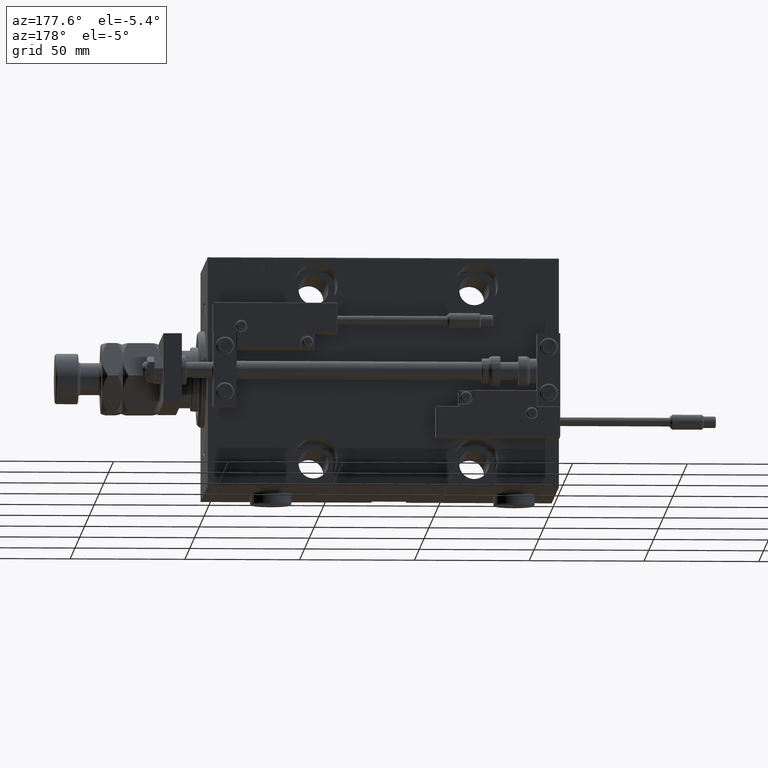
[diagram: clean part render]
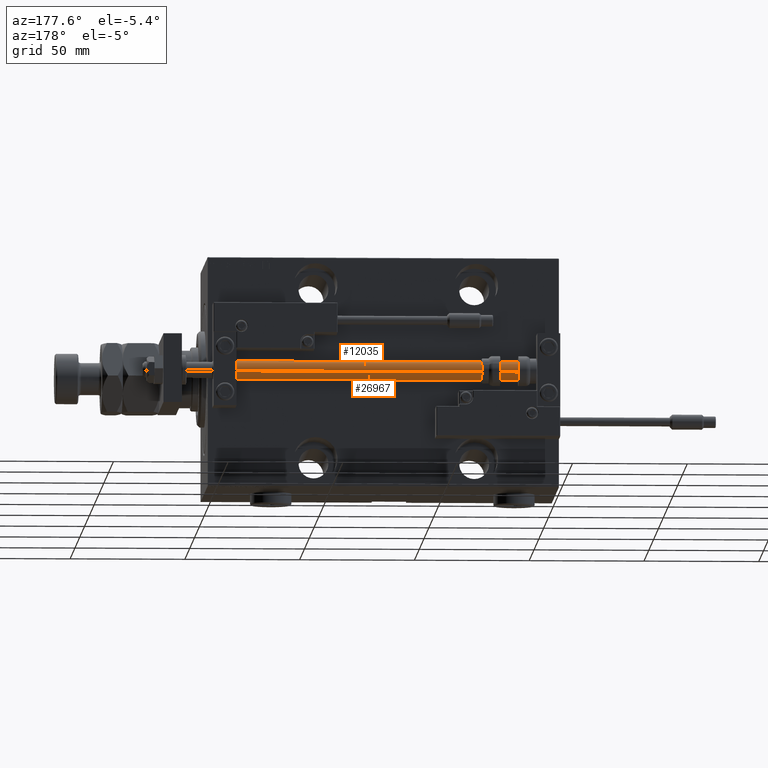
[diagram: same view with one multi-face feature highlighted, each face labeled with its STEP entity id]
A machine part, auxiliary view. The highlighted faces form ONE feature: a constant-radius fillet chain: 2 tangent blend faces with common blend radius 4 mm. The faces share edges in the B-rep.
Their STEP definitions:
[1] entity #26967 (Cylinder):
#1223 = DIRECTION ( 'NONE',  ( 0.000000000000000000, 0.000000000000000000, 1.000000000000000000 ) ) ;
#5324 = CARTESIAN_POINT ( 'NONE',  ( 0.000000000000000000, 0.000000000000000000, 2.000000000000029310 ) ) ;
#9657 = EDGE_CURVE ( 'NONE', #51172, #24324, #53136, .T. ) ;
#9696 = ORIENTED_EDGE ( 'NONE', *, *, #19949, .F. ) ;
#10041 = CARTESIAN_POINT ( 'NONE',  ( -4.000000000000000000, 0.000000000000000000, 2.000000000000029310 ) ) ;
#10278 = CIRCLE ( 'NONE', #36130, 4.000000000000000000 ) ;
#10960 = VECTOR ( 'NONE', #28622, 1000.000000000000000 ) ;
#11566 = CARTESIAN_POINT ( 'NONE',  ( 4.000000000000000000, 4.898587196589412829E-16, 153.0000000000000000 ) ) ;
#14407 = CARTESIAN_POINT ( 'NONE',  ( 4.000000000000000000, 4.898587196589412829E-16, 2.000000000000029310 ) ) ;
#14555 = DIRECTION ( 'NONE',  ( -0.000000000000000000, -0.000000000000000000, -1.000000000000000000 ) ) ;
#15415 = VECTOR ( 'NONE', #21318, 1000.000000000000000 ) ;
#17385 = CARTESIAN_POINT ( 'NONE',  ( 0.000000000000000000, 0.000000000000000000, 153.0000000000000000 ) ) ;
#18068 = LINE ( 'NONE', #38285, #15415 ) ;
#18557 = AXIS2_PLACEMENT_3D ( 'NONE', #17385, #1223, #43530 ) ;
#19187 = CARTESIAN_POINT ( 'NONE',  ( -4.000000000000000000, 0.000000000000000000, 153.0000000000000000 ) ) ;
#19949 = EDGE_CURVE ( 'NONE', #51172, #49911, #21190, .T. ) ;
#20446 = AXIS2_PLACEMENT_3D ( 'NONE', #51780, #14555, #38834 ) ;
#20568 = ORIENTED_EDGE ( 'NONE', *, *, #30485, .F. ) ;
#21190 = CIRCLE ( 'NONE', #18557, 4.000000000000000000 ) ;
#21318 = DIRECTION ( 'NONE',  ( -0.000000000000000000, -0.000000000000000000, -1.000000000000000000 ) ) ;
#21490 = DIRECTION ( 'NONE',  ( 1.000000000000000000, 0.000000000000000000, 0.000000000000000000 ) ) ;
#22936 = FACE_OUTER_BOUND ( 'NONE', #46530, .T. ) ;
#24121 = ORIENTED_EDGE ( 'NONE', *, *, #31474, .T. ) ;
#24324 = VERTEX_POINT ( 'NONE', #14407 ) ;
#25288 = DIRECTION ( 'NONE',  ( -0.000000000000000000, -0.000000000000000000, 1.000000000000000000 ) ) ;
#26967 = ADVANCED_FACE ( 'NONE', ( #22936 ), #30221, .T. ) ;
#28622 = DIRECTION ( 'NONE',  ( -0.000000000000000000, -0.000000000000000000, -1.000000000000000000 ) ) ;
#29403 = CARTESIAN_POINT ( 'NONE',  ( 4.000000000000000000, 4.898587196589412829E-16, 153.0000000000000000 ) ) ;
#30221 = CYLINDRICAL_SURFACE ( 'NONE', #20446, 4.000000000000000000 ) ;
#30485 = EDGE_CURVE ( 'NONE', #49911, #45751, #18068, .T. ) ;
#31474 = EDGE_CURVE ( 'NONE', #24324, #45751, #10278, .T. ) ;
#36130 = AXIS2_PLACEMENT_3D ( 'NONE', #5324, #25288, #21490 ) ;
#38285 = CARTESIAN_POINT ( 'NONE',  ( -4.000000000000000000, 0.000000000000000000, 153.0000000000000000 ) ) ;
#38834 = DIRECTION ( 'NONE',  ( -1.000000000000000000, 0.000000000000000000, 0.000000000000000000 ) ) ;
#43530 = DIRECTION ( 'NONE',  ( 1.000000000000000000, 0.000000000000000000, 0.000000000000000000 ) ) ;
#45751 = VERTEX_POINT ( 'NONE', #10041 ) ;
#46530 = EDGE_LOOP ( 'NONE', ( #9696, #47999, #24121, #20568 ) ) ;
#47999 = ORIENTED_EDGE ( 'NONE', *, *, #9657, .T. ) ;
#49911 = VERTEX_POINT ( 'NONE', #19187 ) ;
#51172 = VERTEX_POINT ( 'NONE', #11566 ) ;
#51780 = CARTESIAN_POINT ( 'NONE',  ( 0.000000000000000000, 0.000000000000000000, 153.0000000000000000 ) ) ;
#53136 = LINE ( 'NONE', #29403, #10960 ) ;
[2] entity #12035 (Cylinder):
#15 = DIRECTION ( 'NONE',  ( -1.000000000000000000, 0.000000000000000000, 0.000000000000000000 ) ) ;
#3275 = ORIENTED_EDGE ( 'NONE', *, *, #47465, .T. ) ;
#4058 = CYLINDRICAL_SURFACE ( 'NONE', #16687, 4.000000000000000000 ) ;
#6266 = ORIENTED_EDGE ( 'NONE', *, *, #32816, .F. ) ;
#7047 = ORIENTED_EDGE ( 'NONE', *, *, #30485, .T. ) ;
#9657 = EDGE_CURVE ( 'NONE', #51172, #24324, #53136, .T. ) ;
#10041 = CARTESIAN_POINT ( 'NONE',  ( -4.000000000000000000, 0.000000000000000000, 2.000000000000029310 ) ) ;
#10960 = VECTOR ( 'NONE', #28622, 1000.000000000000000 ) ;
#11377 = DIRECTION ( 'NONE',  ( 0.000000000000000000, 0.000000000000000000, 1.000000000000000000 ) ) ;
#11566 = CARTESIAN_POINT ( 'NONE',  ( 4.000000000000000000, 4.898587196589412829E-16, 153.0000000000000000 ) ) ;
#12027 = CIRCLE ( 'NONE', #22375, 4.000000000000000000 ) ;
#12035 = ADVANCED_FACE ( 'NONE', ( #20489 ), #4058, .T. ) ;
#14407 = CARTESIAN_POINT ( 'NONE',  ( 4.000000000000000000, 4.898587196589412829E-16, 2.000000000000029310 ) ) ;
#15114 = EDGE_LOOP ( 'NONE', ( #20771, #6266, #7047, #3275 ) ) ;
#15415 = VECTOR ( 'NONE', #21318, 1000.000000000000000 ) ;
#16163 = AXIS2_PLACEMENT_3D ( 'NONE', #51163, #23135, #19090 ) ;
#16687 = AXIS2_PLACEMENT_3D ( 'NONE', #36937, #32635, #15 ) ;
#18068 = LINE ( 'NONE', #38285, #15415 ) ;
#19090 = DIRECTION ( 'NONE',  ( 1.000000000000000000, 0.000000000000000000, 0.000000000000000000 ) ) ;
#19187 = CARTESIAN_POINT ( 'NONE',  ( -4.000000000000000000, 0.000000000000000000, 153.0000000000000000 ) ) ;
#20489 = FACE_OUTER_BOUND ( 'NONE', #15114, .T. ) ;
#20771 = ORIENTED_EDGE ( 'NONE', *, *, #9657, .F. ) ;
#21318 = DIRECTION ( 'NONE',  ( -0.000000000000000000, -0.000000000000000000, -1.000000000000000000 ) ) ;
#22375 = AXIS2_PLACEMENT_3D ( 'NONE', #32393, #11377, #23784 ) ;
#23135 = DIRECTION ( 'NONE',  ( -0.000000000000000000, -0.000000000000000000, 1.000000000000000000 ) ) ;
#23784 = DIRECTION ( 'NONE',  ( 1.000000000000000000, 0.000000000000000000, 0.000000000000000000 ) ) ;
#24324 = VERTEX_POINT ( 'NONE', #14407 ) ;
#28622 = DIRECTION ( 'NONE',  ( -0.000000000000000000, -0.000000000000000000, -1.000000000000000000 ) ) ;
#29403 = CARTESIAN_POINT ( 'NONE',  ( 4.000000000000000000, 4.898587196589412829E-16, 153.0000000000000000 ) ) ;
#30485 = EDGE_CURVE ( 'NONE', #49911, #45751, #18068, .T. ) ;
#32393 = CARTESIAN_POINT ( 'NONE',  ( 0.000000000000000000, 0.000000000000000000, 153.0000000000000000 ) ) ;
#32635 = DIRECTION ( 'NONE',  ( -0.000000000000000000, -0.000000000000000000, -1.000000000000000000 ) ) ;
#32816 = EDGE_CURVE ( 'NONE', #49911, #51172, #12027, .T. ) ;
#36937 = CARTESIAN_POINT ( 'NONE',  ( 0.000000000000000000, 0.000000000000000000, 153.0000000000000000 ) ) ;
#38285 = CARTESIAN_POINT ( 'NONE',  ( -4.000000000000000000, 0.000000000000000000, 153.0000000000000000 ) ) ;
#44578 = CIRCLE ( 'NONE', #16163, 4.000000000000000000 ) ;
#45751 = VERTEX_POINT ( 'NONE', #10041 ) ;
#47465 = EDGE_CURVE ( 'NONE', #45751, #24324, #44578, .T. ) ;
#49911 = VERTEX_POINT ( 'NONE', #19187 ) ;
#51163 = CARTESIAN_POINT ( 'NONE',  ( 0.000000000000000000, 0.000000000000000000, 2.000000000000029310 ) ) ;
#51172 = VERTEX_POINT ( 'NONE', #11566 ) ;
#53136 = LINE ( 'NONE', #29403, #10960 ) ;